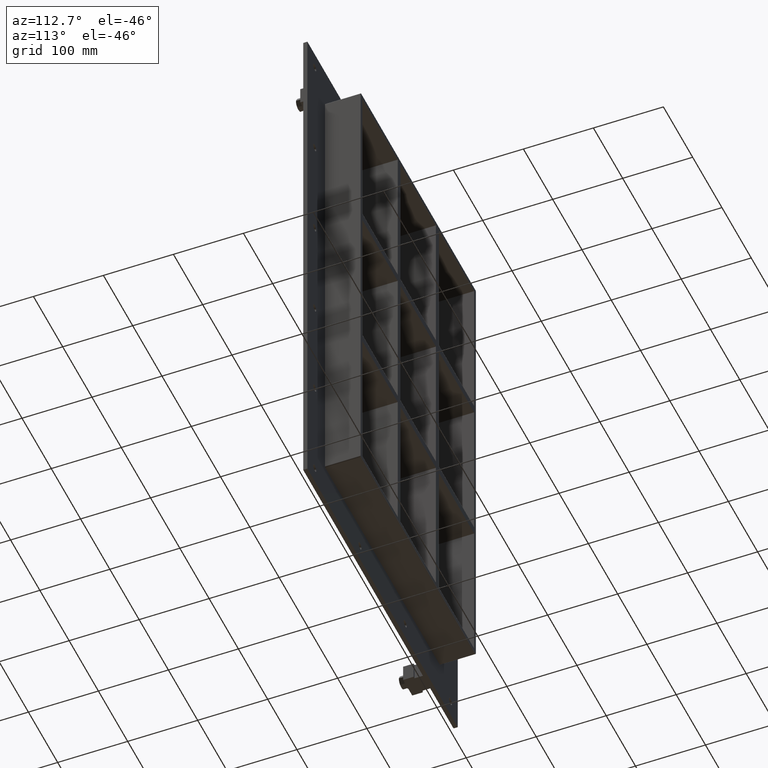
[diagram: clean part render]
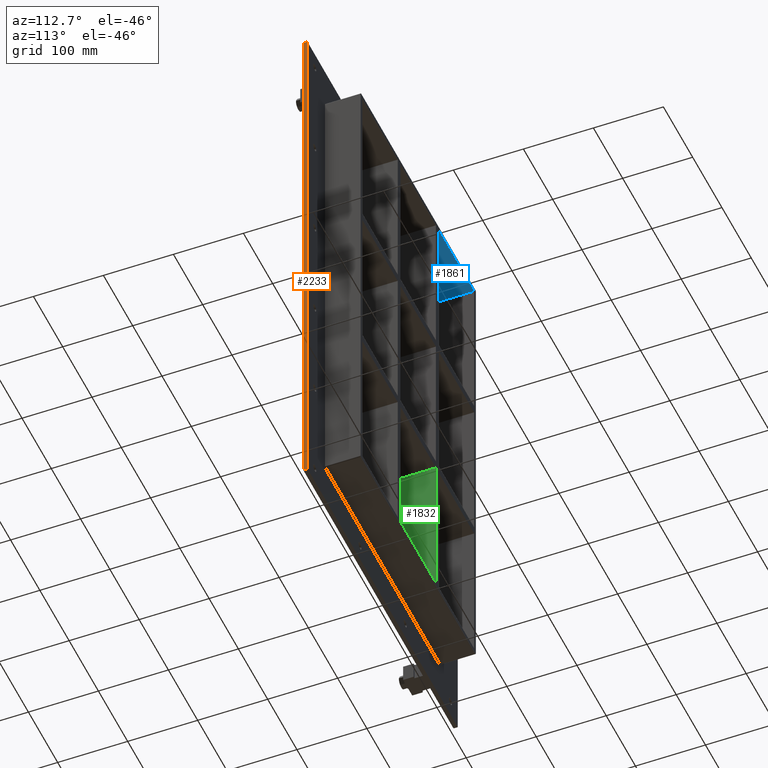
[diagram: same view with three faces highlighted in distinct colors, each labeled with its STEP entity id]
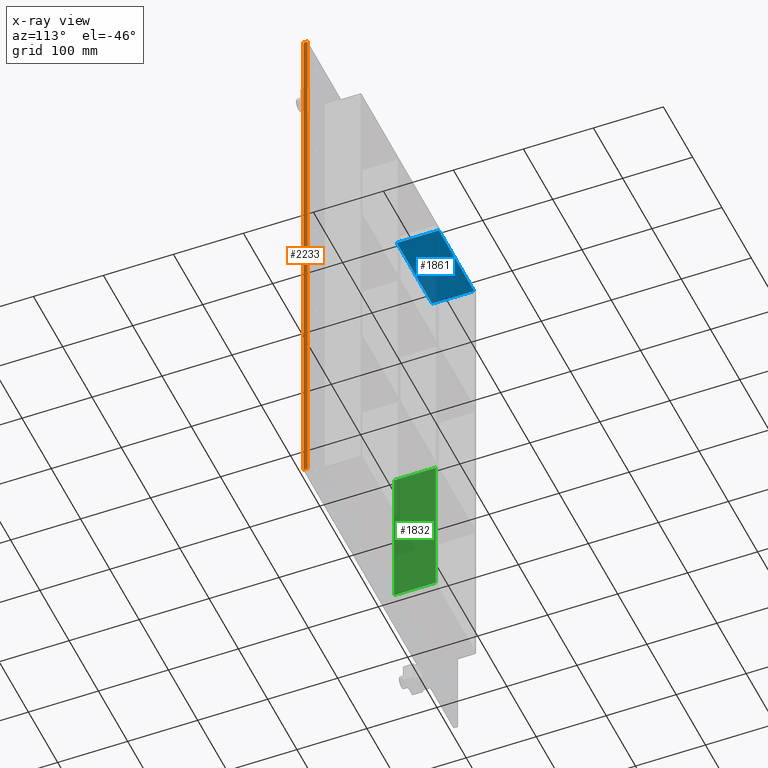
[diagram: x-ray of the same camera — body ghosted, the three highlighted faces saturated]
A machine part, auxiliary view with three faces highlighted in distinct colors.
The next image is the same camera in x-ray (body ghosted, the three faces saturated) — at least one of them is partly hidden behind the body in this view.
Their STEP definitions:

[orange] entity #2233 — the highlighted planar face has unit normal (1, 0, 0).
#1869=CARTESIAN_POINT('',(256.75000000000006,6.000000000000001,405.00000000000006));
#1870=VERTEX_POINT('',#1869);
#1877=CARTESIAN_POINT('',(256.75000000000006,6.000000000000001,-405.00000000000006));
#1878=VERTEX_POINT('',#1877);
#1879=CARTESIAN_POINT('',(256.75000000000006,6.000000000000001,405.00000000000006));
#1880=DIRECTION('',(0.0,0.0,-1.0));
#1881=VECTOR('',#1880,810.00000000000011);
#1882=LINE('',#1879,#1881);
#1883=EDGE_CURVE('',#1870,#1878,#1882,.T.);
#2027=CARTESIAN_POINT('',(256.75000000000006,0.0,405.00000000000006));
#2028=VERTEX_POINT('',#2027);
#2043=CARTESIAN_POINT('',(256.75000000000006,0.0,-405.00000000000006));
#2044=VERTEX_POINT('',#2043);
#2051=CARTESIAN_POINT('',(256.75000000000006,0.0,405.00000000000006));
#2052=DIRECTION('',(0.0,0.0,-1.0));
#2053=VECTOR('',#2052,810.00000000000011);
#2054=LINE('',#2051,#2053);
#2055=EDGE_CURVE('',#2028,#2044,#2054,.T.);
#2208=CARTESIAN_POINT('',(256.75000000000006,0.0,-405.00000000000006));
#2209=DIRECTION('',(0.0,1.0,0.0));
#2210=VECTOR('',#2209,6.000000000000001);
#2211=LINE('',#2208,#2210);
#2212=EDGE_CURVE('',#2044,#1878,#2211,.T.);
#2217=CARTESIAN_POINT('',(256.75000000000006,0.0,405.00000000000006));
#2218=DIRECTION('',(1.0,0.0,0.0));
#2219=DIRECTION('',(0.0,0.0,-1.0));
#2220=AXIS2_PLACEMENT_3D('',#2217,#2218,#2219);
#2221=PLANE('',#2220);
#2222=ORIENTED_EDGE('',*,*,#2055,.T.);
#2223=ORIENTED_EDGE('',*,*,#2212,.T.);
#2224=ORIENTED_EDGE('',*,*,#1883,.F.);
#2225=CARTESIAN_POINT('',(256.75000000000006,0.0,405.00000000000006));
#2226=DIRECTION('',(0.0,1.0,0.0));
#2227=VECTOR('',#2226,6.000000000000001);
#2228=LINE('',#2225,#2227);
#2229=EDGE_CURVE('',#2028,#1870,#2228,.T.);
#2230=ORIENTED_EDGE('',*,*,#2229,.F.);
#2231=EDGE_LOOP('',(#2222,#2223,#2224,#2230));
#2232=FACE_OUTER_BOUND('',#2231,.T.);
#2233=ADVANCED_FACE('',(#2232),#2221,.T.);

[blue] entity #1861 — the highlighted planar face has unit normal (0, 0, 1).
#762=CARTESIAN_POINT('',(-190.75,57.0,339.00000000000006));
#763=VERTEX_POINT('',#762);
#770=CARTESIAN_POINT('',(-190.75,-3.0,339.00000000000006));
#771=VERTEX_POINT('',#770);
#772=CARTESIAN_POINT('',(-190.75000000000003,-3.0,339.00000000000011));
#773=DIRECTION('',(0.0,1.0,0.0));
#774=VECTOR('',#773,60.0);
#775=LINE('',#772,#774);
#776=EDGE_CURVE('',#771,#763,#775,.T.);
#917=CARTESIAN_POINT('',(-70.250000000000369,-3.0,339.00000000000006));
#918=VERTEX_POINT('',#917);
#925=CARTESIAN_POINT('',(-70.250000000000369,57.0,339.00000000000006));
#926=VERTEX_POINT('',#925);
#927=CARTESIAN_POINT('',(-70.250000000000369,57.000000000000007,339.00000000000011));
#928=DIRECTION('',(0.0,-1.0,0.0));
#929=VECTOR('',#928,60.000000000000007);
#930=LINE('',#927,#929);
#931=EDGE_CURVE('',#926,#918,#930,.T.);
#1214=CARTESIAN_POINT('',(-70.250000000000369,57.0,339.00000000000011));
#1215=DIRECTION('',(-1.0,0.0,0.0));
#1216=VECTOR('',#1215,120.49999999999963);
#1217=LINE('',#1214,#1216);
#1218=EDGE_CURVE('',#926,#763,#1217,.T.);
#1492=CARTESIAN_POINT('',(-190.75,-3.0,339.00000000000011));
#1493=DIRECTION('',(1.0,0.0,0.0));
#1494=VECTOR('',#1493,120.49999999999963);
#1495=LINE('',#1492,#1494);
#1496=EDGE_CURVE('',#771,#918,#1495,.T.);
#1850=CARTESIAN_POINT('',(-190.75000000000003,0.0,339.00000000000011));
#1851=DIRECTION('',(0.0,0.0,1.0));
#1852=DIRECTION('',(1.0,0.0,0.0));
#1853=AXIS2_PLACEMENT_3D('',#1850,#1851,#1852);
#1854=PLANE('',#1853);
#1855=ORIENTED_EDGE('',*,*,#931,.T.);
#1856=ORIENTED_EDGE('',*,*,#1496,.F.);
#1857=ORIENTED_EDGE('',*,*,#776,.T.);
#1858=ORIENTED_EDGE('',*,*,#1218,.F.);
#1859=EDGE_LOOP('',(#1855,#1856,#1857,#1858));
#1860=FACE_OUTER_BOUND('',#1859,.T.);
#1861=ADVANCED_FACE('',(#1860),#1854,.F.);

[green] entity #1832 — the highlighted planar face has unit normal (1, 0, 0).
#1188=CARTESIAN_POINT('',(-60.249999999996362,57.0,-121.00000000001138));
#1189=VERTEX_POINT('',#1188);
#1196=CARTESIAN_POINT('',(-60.249999999996362,57.0,-338.9999999999817));
#1197=VERTEX_POINT('',#1196);
#1198=CARTESIAN_POINT('',(-60.249999999996362,57.0,-121.00000000001137));
#1199=DIRECTION('',(0.0,0.0,-1.0));
#1200=VECTOR('',#1199,217.99999999997038);
#1201=LINE('',#1198,#1200);
#1202=EDGE_CURVE('',#1189,#1197,#1201,.T.);
#1375=CARTESIAN_POINT('',(-60.249999999996362,-3.0,-338.9999999999817));
#1376=VERTEX_POINT('',#1375);
#1377=CARTESIAN_POINT('',(-60.249999999996362,57.000000000000007,-339.00000000000006));
#1378=DIRECTION('',(0.0,-1.0,0.0));
#1379=VECTOR('',#1378,60.000000000000007);
#1380=LINE('',#1377,#1379);
#1381=EDGE_CURVE('',#1197,#1376,#1380,.T.);
#1572=CARTESIAN_POINT('',(-60.249999999996362,-3.0,-121.00000000001138));
#1573=VERTEX_POINT('',#1572);
#1574=CARTESIAN_POINT('',(-60.249999999996362,-3.0,-121.00000000001137));
#1575=DIRECTION('',(0.0,0.0,-1.0));
#1576=VECTOR('',#1575,217.99999999997038);
#1577=LINE('',#1574,#1576);
#1578=EDGE_CURVE('',#1573,#1376,#1577,.T.);
#1702=CARTESIAN_POINT('',(-60.249999999996355,57.0,-121.00000000001143));
#1703=DIRECTION('',(0.0,-1.0,0.0));
#1704=VECTOR('',#1703,60.0);
#1705=LINE('',#1702,#1704);
#1706=EDGE_CURVE('',#1189,#1573,#1705,.T.);
#1821=CARTESIAN_POINT('',(-60.249999999996362,-3.0,339.00000000000006));
#1822=DIRECTION('',(1.0,0.0,0.0));
#1823=DIRECTION('',(0.0,0.0,-1.0));
#1824=AXIS2_PLACEMENT_3D('',#1821,#1822,#1823);
#1825=PLANE('',#1824);
#1826=ORIENTED_EDGE('',*,*,#1706,.T.);
#1827=ORIENTED_EDGE('',*,*,#1578,.T.);
#1828=ORIENTED_EDGE('',*,*,#1381,.F.);
#1829=ORIENTED_EDGE('',*,*,#1202,.F.);
#1830=EDGE_LOOP('',(#1826,#1827,#1828,#1829));
#1831=FACE_OUTER_BOUND('',#1830,.T.);
#1832=ADVANCED_FACE('',(#1831),#1825,.T.);